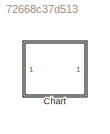
MODEL slx_72668c37d513
KIND model
CONFIG AbsTol = auto
CONFIG EnableMultiTasking = off
CONFIG FixedStep = auto
CONFIG MaxStep = auto
CONFIG MinStep = auto
CONFIG RelTol = 1e-3
CONFIG SampleTimeConstraint = Unconstrained
CONFIG SolverName = VariableStepAuto
CONFIG StartTime = 0.0
CONFIG StopTime = 1
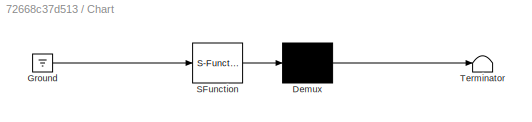
BLOCK [SubSystem] Chart
  ErrorFcn = Stateflow.Translate.translate
  PermitHierarchicalResolution = ExplicitOnly
  Ports = []
  RequestExecContextInheritance = off
  SFBlockType = Chart
  TreatAsAtomicUnit = on
BLOCK [Demux] Chart/ Demux 
  Outputs = 1
  Ports = [1, 1]
BLOCK [Ground] Chart/ Ground 
BLOCK [S-Function] Chart/ SFunction 
  EnableBusSupport = on
  FunctionName = sf_sfun
  PortCounts = [1 1]
  Ports = [1, 1]
  SFcnIsStateOwnerBlock = off
  SFunctionDeploymentMode = off
  Tag = Stateflow S-Function 3
BLOCK [Terminator] Chart/ Terminator 
CHART Chart states=5 transitions=3
  STATE_LABEL "a\nen:\nsfdbg('a.en')\ndu:\nsfdbg('a.du')\nsend(disarm,c.disarm1)\nex:\nsfdbg('a.ex')\n"
  STATE_LABEL "b\nen:\nsfdbg('b.en')\ndu:\nsfdbg('b.du')\nex:\nsfdbg('b.ex')\n"
  STATE_LABEL "c\nen:\nsfdbg('c.en')\ndu:\nsfdbg('c.du')\nex:\nsfdbg('c.ex')"
  STATE_LABEL "arm1\nen:\nsfdbg('arm.en')\ndu:\nsfdbg('arm.du')\nex:\nsfdbg('arm.ex')\n"
  STATE_LABEL "disarm1\nen:\nsfdbg('dis.en')\ndu:\nsfdbg('dis.du')\nex:\nsfdbg('dis.ex')"
  STATE_LABEL 'arm'
  STATE_LABEL 'disarm'
  STATE_LABEL "arm1\nen:\nsfdbg('arm.en')\ndu:\nsfdbg('arm.du')\nex:\nsfdbg('arm.ex')\n"
  STATE_LABEL "disarm1\nen:\nsfdbg('dis.en')\ndu:\nsfdbg('dis.du')\nex:\nsfdbg('dis.ex')"
CHART  states=0 transitions=0
